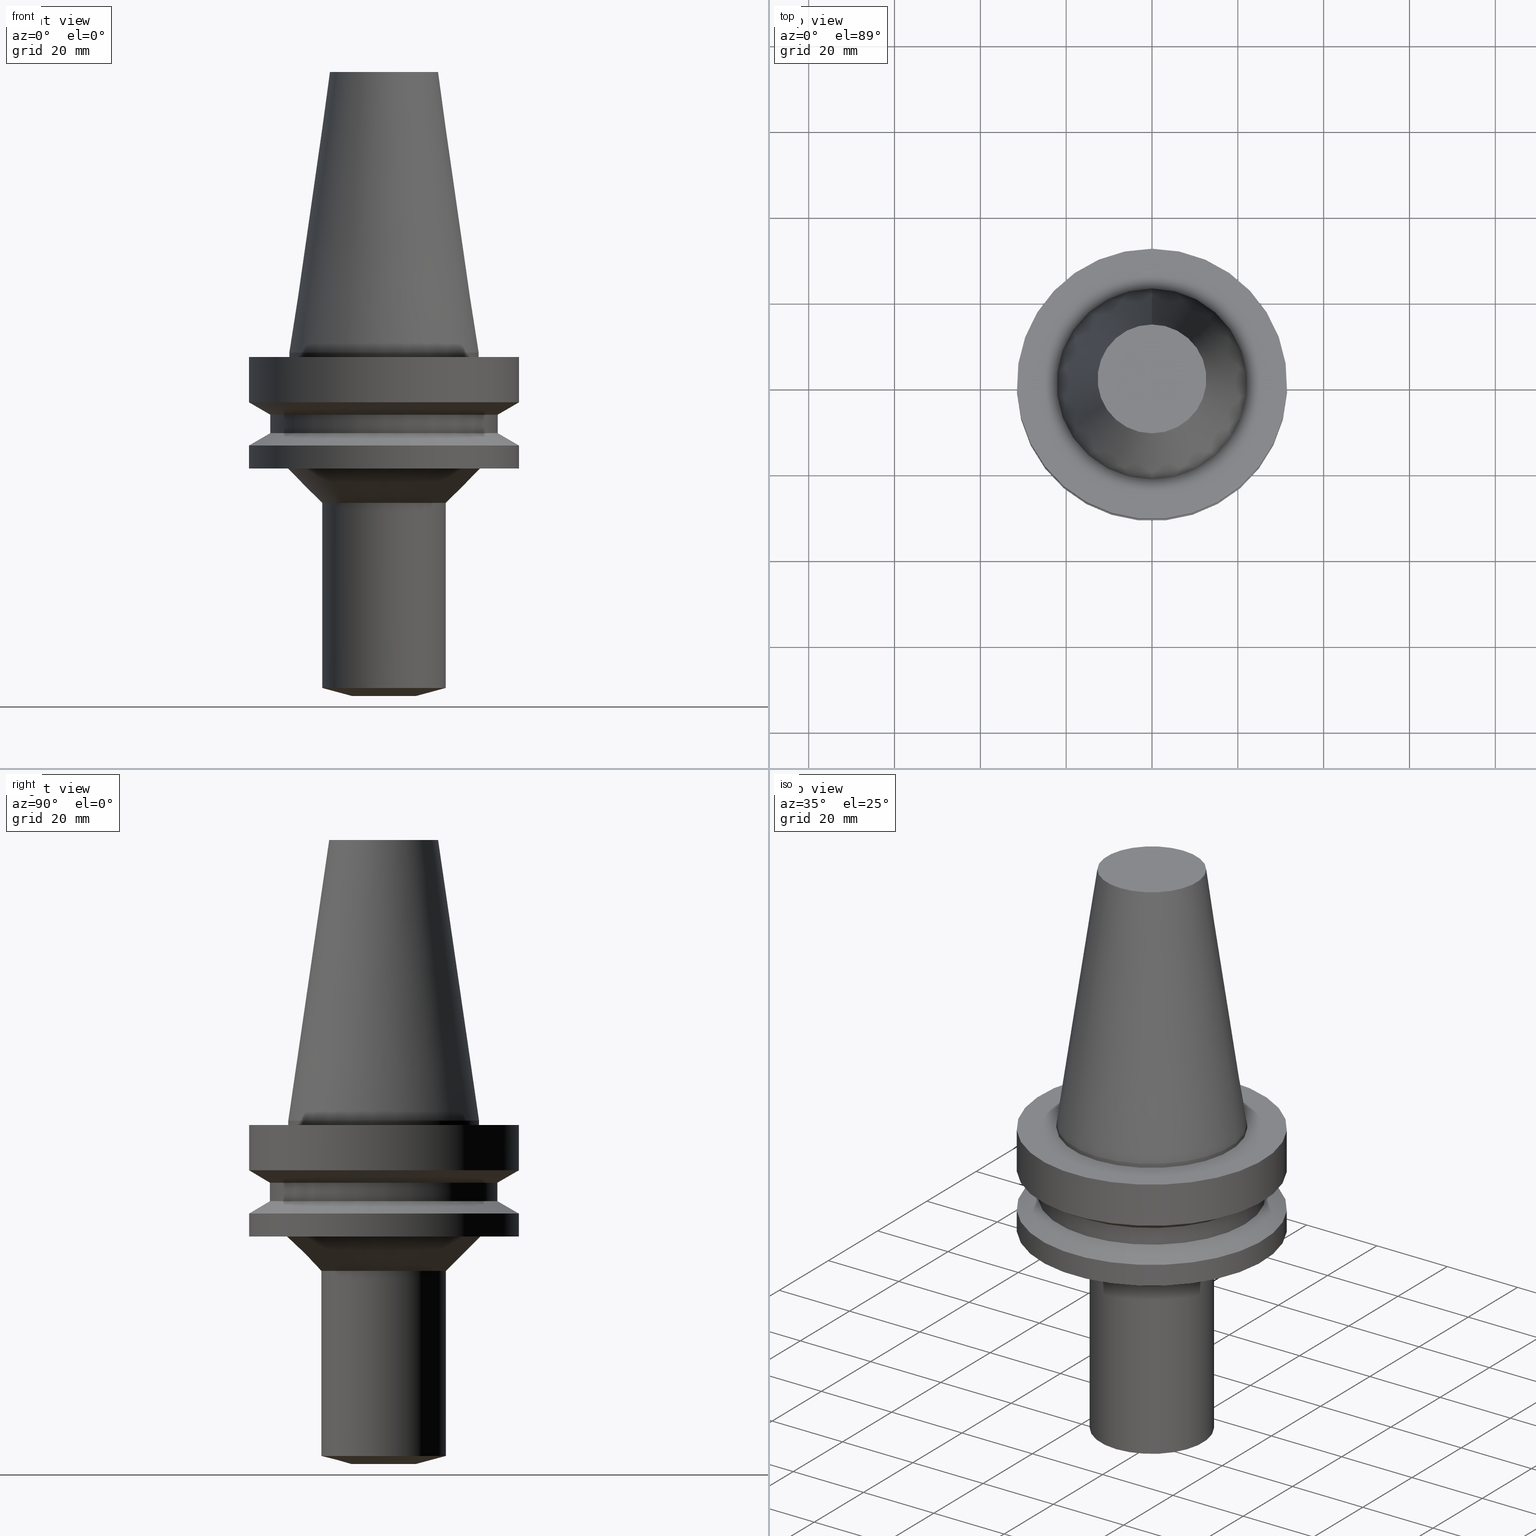
[diagram: canonical four-view strip — front | top / right | iso, engineering-drawing reading convention]
A machine part, canonical four-view strip (front | top / right | iso — engineering-drawing reading convention). The complete STEP part file that produces these views, byte-faithful:
ISO-10303-21;
HEADER;
FILE_DESCRIPTION((''),'1');
FILE_NAME('T:/21_DXF\X2\30C730FC30BF4F5C621057FA6E96\X0\/BBT40M-BSL10-80.stp','2017-05-09T05:48:59',(''),(''),'Spatial Interop R21 SP3','Kubotek KeyCreator 2011 V10.0.2 (22737)',' ');
FILE_SCHEMA(('automotive_design'));
ENDSEC;
DATA;
#1=MECHANICAL_DESIGN_GEOMETRIC_PRESENTATION_REPRESENTATION(' ',(#10,#11,#12,#13,#14,#15,#16,#17,#18,#19,#20,#21,#22,#23,#24,#25,#26,#27,#28,#29,#30,#31,#32,#33,#34,#35,#36,#37),#6);
#2=PRODUCT_DEFINITION_CONTEXT('',#38,'design');
#3=APPLICATION_PROTOCOL_DEFINITION('INTERNATIONAL STANDARD','automotive_design',1994,#38);
#4=PRODUCT_CATEGORY_RELATIONSHIP('NONE','NONE',#39,#40);
#5=SHAPE_DEFINITION_REPRESENTATION(#41,#42);
#6= (GEOMETRIC_REPRESENTATION_CONTEXT(3)GLOBAL_UNCERTAINTY_ASSIGNED_CONTEXT((#45))GLOBAL_UNIT_ASSIGNED_CONTEXT((#47,#48,#49))REPRESENTATION_CONTEXT('NONE','WORKSPACE'));
#10=STYLED_ITEM('',(#51,#52),#53);
#11=STYLED_ITEM('',(#54),#55);
#12=STYLED_ITEM('',(#56,#57),#58);
#13=STYLED_ITEM('',(#59,#60),#61);
#14=STYLED_ITEM('',(#62,#63),#64);
#15=STYLED_ITEM('',(#65,#66),#67);
#16=STYLED_ITEM('',(#68),#69);
#17=STYLED_ITEM('',(#70),#71);
#18=STYLED_ITEM('',(#72,#73),#74);
#19=STYLED_ITEM('',(#75,#76),#77);
#20=STYLED_ITEM('',(#78),#79);
#21=STYLED_ITEM('',(#80),#81);
#22=STYLED_ITEM('',(#82,#83),#84);
#23=STYLED_ITEM('',(#85,#86),#87);
#24=STYLED_ITEM('',(#88),#89);
#25=STYLED_ITEM('',(#90,#91),#92);
#26=STYLED_ITEM('',(#93),#94);
#27=STYLED_ITEM('',(#95),#96);
#28=STYLED_ITEM('',(#97,#98),#99);
#29=STYLED_ITEM('',(#100),#101);
#30=STYLED_ITEM('',(#102),#103);
#31=STYLED_ITEM('',(#104,#105),#106);
#32=STYLED_ITEM('',(#107),#108);
#33=STYLED_ITEM('',(#109,#110),#111);
#34=STYLED_ITEM('',(#112,#113),#114);
#35=STYLED_ITEM('',(#115),#116);
#36=STYLED_ITEM('',(#117,#118),#119);
#37=STYLED_ITEM('',(#120),#121);
#38=APPLICATION_CONTEXT(' ');
#39=PRODUCT_CATEGORY('part','NONE');
#40=PRODUCT_RELATED_PRODUCT_CATEGORY('detail',' ',(#122));
#41=PRODUCT_DEFINITION_SHAPE('NONE','NONE',#123);
#42=ADVANCED_BREP_SHAPE_REPRESENTATION('Unnamed[1]',(#92,#124),#6);
#45=UNCERTAINTY_MEASURE_WITH_UNIT(LENGTH_MEASURE(1.0E-006),#47,'','');
#47= (CONVERSION_BASED_UNIT('MILLIMETRE',#127)LENGTH_UNIT()NAMED_UNIT(#130));
#48= (NAMED_UNIT(#132)PLANE_ANGLE_UNIT()SI_UNIT($,.RADIAN.));
#49= (NAMED_UNIT(#132)SOLID_ANGLE_UNIT()SI_UNIT($,.STERADIAN.));
#51=PRESENTATION_STYLE_ASSIGNMENT((#138));
#52=PRESENTATION_STYLE_ASSIGNMENT((#139));
#53=ADVANCED_FACE('Unnamed[1]',(#140,#141),#142,.T.);
#54=PRESENTATION_STYLE_ASSIGNMENT((#143));
#55=EDGE_CURVE('Unnamed[1]',#144,#144,#145,.T.);
#56=PRESENTATION_STYLE_ASSIGNMENT((#146));
#57=PRESENTATION_STYLE_ASSIGNMENT((#147));
#58=ADVANCED_FACE('Unnamed[1]',(#148),#149,.T.);
#59=PRESENTATION_STYLE_ASSIGNMENT((#150));
#60=PRESENTATION_STYLE_ASSIGNMENT((#151));
#61=ADVANCED_FACE('Unnamed[1]',(#152,#153),#154,.T.);
#62=PRESENTATION_STYLE_ASSIGNMENT((#155));
#63=PRESENTATION_STYLE_ASSIGNMENT((#156));
#64=ADVANCED_FACE('Unnamed[1]',(#157,#158),#159,.T.);
#65=PRESENTATION_STYLE_ASSIGNMENT((#160));
#66=PRESENTATION_STYLE_ASSIGNMENT((#161));
#67=ADVANCED_FACE('Unnamed[1]',(#162,#163),#164,.T.);
#68=PRESENTATION_STYLE_ASSIGNMENT((#165));
#69=EDGE_CURVE('Unnamed[1]',#166,#166,#167,.T.);
#70=PRESENTATION_STYLE_ASSIGNMENT((#168));
#71=EDGE_CURVE('Unnamed[1]',#169,#169,#170,.T.);
#72=PRESENTATION_STYLE_ASSIGNMENT((#171));
#73=PRESENTATION_STYLE_ASSIGNMENT((#172));
#74=ADVANCED_FACE('Unnamed[1]',(#173,#174),#175,.T.);
#75=PRESENTATION_STYLE_ASSIGNMENT((#176));
#76=PRESENTATION_STYLE_ASSIGNMENT((#177));
#77=ADVANCED_FACE('Unnamed[1]',(#178,#179),#180,.T.);
#78=PRESENTATION_STYLE_ASSIGNMENT((#181));
#79=EDGE_CURVE('Unnamed[1]',#182,#182,#183,.T.);
#80=PRESENTATION_STYLE_ASSIGNMENT((#184));
#81=EDGE_CURVE('Unnamed[1]',#185,#185,#186,.T.);
#82=PRESENTATION_STYLE_ASSIGNMENT((#187));
#83=PRESENTATION_STYLE_ASSIGNMENT((#188));
#84=ADVANCED_FACE('Unnamed[1]',(#189,#190),#191,.T.);
#85=PRESENTATION_STYLE_ASSIGNMENT((#192));
#86=PRESENTATION_STYLE_ASSIGNMENT((#193));
#87=ADVANCED_FACE('Unnamed[1]',(#194,#195),#196,.T.);
#88=PRESENTATION_STYLE_ASSIGNMENT((#197));
#89=EDGE_CURVE('Unnamed[1]',#198,#198,#199,.T.);
#90=PRESENTATION_STYLE_ASSIGNMENT((#200));
#91=PRESENTATION_STYLE_ASSIGNMENT((#201));
#92=MANIFOLD_SOLID_BREP('Unnamed[1]',#202);
#93=PRESENTATION_STYLE_ASSIGNMENT((#203));
#94=EDGE_CURVE('Unnamed[1]',#204,#204,#205,.T.);
#95=PRESENTATION_STYLE_ASSIGNMENT((#206));
#96=EDGE_CURVE('Unnamed[1]',#207,#207,#208,.T.);
#97=PRESENTATION_STYLE_ASSIGNMENT((#209));
#98=PRESENTATION_STYLE_ASSIGNMENT((#210));
#99=ADVANCED_FACE('Unnamed[1]',(#211,#212),#213,.T.);
#100=PRESENTATION_STYLE_ASSIGNMENT((#214));
#101=EDGE_CURVE('Unnamed[1]',#215,#215,#216,.T.);
#102=PRESENTATION_STYLE_ASSIGNMENT((#217));
#103=EDGE_CURVE('Unnamed[1]',#218,#218,#219,.T.);
#104=PRESENTATION_STYLE_ASSIGNMENT((#220));
#105=PRESENTATION_STYLE_ASSIGNMENT((#221));
#106=ADVANCED_FACE('Unnamed[1]',(#222,#223),#224,.T.);
#107=PRESENTATION_STYLE_ASSIGNMENT((#225));
#108=EDGE_CURVE('Unnamed[1]',#226,#226,#227,.T.);
#109=PRESENTATION_STYLE_ASSIGNMENT((#228));
#110=PRESENTATION_STYLE_ASSIGNMENT((#229));
#111=ADVANCED_FACE('Unnamed[1]',(#230,#231),#232,.T.);
#112=PRESENTATION_STYLE_ASSIGNMENT((#233));
#113=PRESENTATION_STYLE_ASSIGNMENT((#234));
#114=ADVANCED_FACE('Unnamed[1]',(#235,#236),#237,.T.);
#115=PRESENTATION_STYLE_ASSIGNMENT((#238));
#116=EDGE_CURVE('Unnamed[1]',#239,#239,#240,.T.);
#117=PRESENTATION_STYLE_ASSIGNMENT((#241));
#118=PRESENTATION_STYLE_ASSIGNMENT((#242));
#119=ADVANCED_FACE('Unnamed[1]',(#243),#244,.T.);
#120=PRESENTATION_STYLE_ASSIGNMENT((#245));
#121=EDGE_CURVE('Unnamed[1]',#246,#246,#247,.T.);
#122=PRODUCT('Unnamed[1]','Unnamed[1]','PART-Unnamed[1]-DESC',(#248));
#123=PRODUCT_DEFINITION('NONE','NONE',#249,#2);
#124=AXIS2_PLACEMENT_3D('',#250,#251,#252);
#127=LENGTH_MEASURE_WITH_UNIT(LENGTH_MEASURE(1.0),#253);
#130=DIMENSIONAL_EXPONENTS(1.0,0.0,0.0,0.0,0.0,0.0,0.0);
#132=DIMENSIONAL_EXPONENTS(0.0,0.0,0.0,0.0,0.0,0.0,0.0);
#138=SURFACE_STYLE_USAGE(.BOTH.,#254);
#139=CURVE_STYLE('',#255,POSITIVE_LENGTH_MEASURE(1000.0),#256);
#140=FACE_BOUND('',#257,.T.);
#141=FACE_BOUND('',#258,.T.);
#142=CYLINDRICAL_SURFACE('',#259,31.5000000000005);
#143=CURVE_STYLE('',#260,POSITIVE_LENGTH_MEASURE(1000.0),#261);
#144=VERTEX_POINT('',#262);
#145=CIRCLE('',#263,22.225);
#146=SURFACE_STYLE_USAGE(.BOTH.,#264);
#147=CURVE_STYLE('',#265,POSITIVE_LENGTH_MEASURE(1000.0),#266);
#148=FACE_OUTER_BOUND('',#267,.T.);
#149=PLANE('',#268);
#150=SURFACE_STYLE_USAGE(.BOTH.,#269);
#151=CURVE_STYLE('',#270,POSITIVE_LENGTH_MEASURE(1000.0),#271);
#152=FACE_BOUND('',#272,.T.);
#153=FACE_BOUND('',#273,.T.);
#154=CYLINDRICAL_SURFACE('',#274,26.4999999999997);
#155=SURFACE_STYLE_USAGE(.BOTH.,#275);
#156=CURVE_STYLE('',#276,POSITIVE_LENGTH_MEASURE(1000.0),#277);
#157=FACE_BOUND('',#278,.T.);
#158=FACE_BOUND('',#279,.T.);
#159=CONICAL_SURFACE('',#280,17.4562500000001,0.144812498238936);
#160=SURFACE_STYLE_USAGE(.BOTH.,#281);
#161=CURVE_STYLE('',#282,POSITIVE_LENGTH_MEASURE(1000.0),#283);
#162=FACE_BOUND('',#284,.T.);
#163=FACE_BOUND('',#285,.T.);
#164=CYLINDRICAL_SURFACE('',#286,14.5);
#165=CURVE_STYLE('',#287,POSITIVE_LENGTH_MEASURE(1000.0),#288);
#166=VERTEX_POINT('',#289);
#167=CIRCLE('',#290,26.4999999999994);
#168=CURVE_STYLE('',#291,POSITIVE_LENGTH_MEASURE(1000.0),#292);
#169=VERTEX_POINT('',#293);
#170=CIRCLE('',#294,26.5);
#171=SURFACE_STYLE_USAGE(.BOTH.,#295);
#172=CURVE_STYLE('',#296,POSITIVE_LENGTH_MEASURE(1000.0),#297);
#173=FACE_BOUND('',#298,.T.);
#174=FACE_BOUND('',#299,.T.);
#175=CONICAL_SURFACE('',#300,11.0,1.3089969390537);
#176=SURFACE_STYLE_USAGE(.BOTH.,#301);
#177=CURVE_STYLE('',#302,POSITIVE_LENGTH_MEASURE(1000.0),#303);
#178=FACE_BOUND('',#304,.T.);
#179=FACE_BOUND('',#305,.T.);
#180=CYLINDRICAL_SURFACE('',#306,31.5);
#181=CURVE_STYLE('',#307,POSITIVE_LENGTH_MEASURE(1000.0),#308);
#182=VERTEX_POINT('',#309);
#183=CIRCLE('',#310,31.5000000000007);
#184=CURVE_STYLE('',#311,POSITIVE_LENGTH_MEASURE(1000.0),#312);
#185=VERTEX_POINT('',#313);
#186=CIRCLE('',#314,7.50000000000003);
#187=SURFACE_STYLE_USAGE(.BOTH.,#315);
#188=CURVE_STYLE('',#316,POSITIVE_LENGTH_MEASURE(1000.0),#317);
#189=FACE_BOUND('',#318,.T.);
#190=FACE_BOUND('',#319,.T.);
#191=CONICAL_SURFACE('',#320,18.5000000000001,0.785398163397448);
#192=SURFACE_STYLE_USAGE(.BOTH.,#321);
#193=CURVE_STYLE('',#322,POSITIVE_LENGTH_MEASURE(1000.0),#323);
#194=FACE_OUTER_BOUND('',#324,.T.);
#195=FACE_BOUND('',#325,.T.);
#196=PLANE('',#326);
#197=CURVE_STYLE('',#327,POSITIVE_LENGTH_MEASURE(1000.0),#328);
#198=VERTEX_POINT('',#329);
#199=CIRCLE('',#330,12.6875000000001);
#200=SURFACE_STYLE_USAGE(.BOTH.,#331);
#201=CURVE_STYLE('',#332,POSITIVE_LENGTH_MEASURE(1000.0),#333);
#202=CLOSED_SHELL('',(#119,#64,#106,#87,#77,#114,#61,#111,#53,#99,#84,#67,#74,#58));
#203=CURVE_STYLE('',#334,POSITIVE_LENGTH_MEASURE(1000.0),#335);
#204=VERTEX_POINT('',#336);
#205=CIRCLE('',#337,31.5000000000004);
#206=CURVE_STYLE('',#338,POSITIVE_LENGTH_MEASURE(1000.0),#339);
#207=VERTEX_POINT('',#340);
#208=CIRCLE('',#341,22.225);
#209=SURFACE_STYLE_USAGE(.BOTH.,#342);
#210=CURVE_STYLE('',#343,POSITIVE_LENGTH_MEASURE(1000.0),#344);
#211=FACE_BOUND('',#345,.T.);
#212=FACE_OUTER_BOUND('',#346,.T.);
#213=PLANE('',#347);
#214=CURVE_STYLE('',#348,POSITIVE_LENGTH_MEASURE(1000.0),#349);
#215=VERTEX_POINT('',#350);
#216=CIRCLE('',#351,22.5000000000002);
#217=CURVE_STYLE('',#352,POSITIVE_LENGTH_MEASURE(1000.0),#353);
#218=VERTEX_POINT('',#354);
#219=CIRCLE('',#355,14.5);
#220=SURFACE_STYLE_USAGE(.BOTH.,#356);
#221=CURVE_STYLE('',#357,POSITIVE_LENGTH_MEASURE(1000.0),#358);
#222=FACE_BOUND('',#359,.T.);
#223=FACE_BOUND('',#360,.T.);
#224=CYLINDRICAL_SURFACE('',#361,22.225);
#225=CURVE_STYLE('',#362,POSITIVE_LENGTH_MEASURE(1000.0),#363);
#226=VERTEX_POINT('',#364);
#227=CIRCLE('',#365,14.5);
#228=SURFACE_STYLE_USAGE(.BOTH.,#366);
#229=CURVE_STYLE('',#367,POSITIVE_LENGTH_MEASURE(1000.0),#368);
#230=FACE_BOUND('',#369,.T.);
#231=FACE_BOUND('',#370,.T.);
#232=CONICAL_SURFACE('',#371,29.0000000000004,1.04719755119651);
#233=SURFACE_STYLE_USAGE(.BOTH.,#372);
#234=CURVE_STYLE('',#373,POSITIVE_LENGTH_MEASURE(1000.0),#374);
#235=FACE_BOUND('',#375,.T.);
#236=FACE_BOUND('',#376,.T.);
#237=CONICAL_SURFACE('',#377,28.9999999999999,1.04719755119657);
#238=CURVE_STYLE('',#378,POSITIVE_LENGTH_MEASURE(1000.0),#379);
#239=VERTEX_POINT('',#380);
#240=CIRCLE('',#381,31.4999999999997);
#241=SURFACE_STYLE_USAGE(.BOTH.,#382);
#242=CURVE_STYLE('',#383,POSITIVE_LENGTH_MEASURE(1000.0),#384);
#243=FACE_OUTER_BOUND('',#385,.T.);
#244=PLANE('',#386);
#245=CURVE_STYLE('',#387,POSITIVE_LENGTH_MEASURE(1000.0),#388);
#246=VERTEX_POINT('',#389);
#247=CIRCLE('',#390,31.5000000000004);
#248=PRODUCT_CONTEXT('',#38,'mechanical');
#249=PRODUCT_DEFINITION_FORMATION_WITH_SPECIFIED_SOURCE(' ','NONE',#122,.NOT_KNOWN.);
#250=CARTESIAN_POINT('',(0.0,0.0,0.0));
#251=DIRECTION('',(0.0,0.0,1.0));
#252=DIRECTION('',(1.0,0.0,0.0));
#253= (NAMED_UNIT(#130)LENGTH_UNIT()SI_UNIT(.MILLI.,.METRE.));
#254=SURFACE_SIDE_STYLE('',(#392));
#255=DRAUGHTING_PRE_DEFINED_CURVE_FONT('continuous');
#256=COLOUR_RGB('',0.0,1.0,0.0);
#257=EDGE_LOOP('',(#393));
#258=EDGE_LOOP('',(#394));
#259=AXIS2_PLACEMENT_3D('',#395,#396,#397);
#260=DRAUGHTING_PRE_DEFINED_CURVE_FONT('continuous');
#261=COLOUR_RGB('',0.0,1.0,0.0);
#262=CARTESIAN_POINT('',(6.12323399573604E-017,22.2250000000001,-0.999999999999884));
#263=AXIS2_PLACEMENT_3D('',#398,#399,#400);
#264=SURFACE_SIDE_STYLE('',(#401));
#265=DRAUGHTING_PRE_DEFINED_CURVE_FONT('continuous');
#266=COLOUR_RGB('',0.0,1.0,0.0);
#267=EDGE_LOOP('',(#402));
#268=AXIS2_PLACEMENT_3D('',#403,#404,#405);
#269=SURFACE_SIDE_STYLE('',(#406));
#270=DRAUGHTING_PRE_DEFINED_CURVE_FONT('continuous');
#271=COLOUR_RGB('',0.0,1.0,0.0);
#272=EDGE_LOOP('',(#407));
#273=EDGE_LOOP('',(#408));
#274=AXIS2_PLACEMENT_3D('',#409,#410,#411);
#275=SURFACE_SIDE_STYLE('',(#412));
#276=DRAUGHTING_PRE_DEFINED_CURVE_FONT('continuous');
#277=COLOUR_RGB('',0.0,1.0,0.0);
#278=EDGE_LOOP('',(#413));
#279=EDGE_LOOP('',(#414));
#280=AXIS2_PLACEMENT_3D('',#415,#416,#417);
#281=SURFACE_SIDE_STYLE('',(#418));
#282=DRAUGHTING_PRE_DEFINED_CURVE_FONT('continuous');
#283=COLOUR_RGB('',0.0,1.0,0.0);
#284=EDGE_LOOP('',(#419));
#285=EDGE_LOOP('',(#420));
#286=AXIS2_PLACEMENT_3D('',#421,#422,#423);
#287=DRAUGHTING_PRE_DEFINED_CURVE_FONT('continuous');
#288=COLOUR_RGB('',0.0,1.0,0.0);
#289=CARTESIAN_POINT('',(8.8494551369045E-016,26.4999999999995,-14.4522569986152));
#290=AXIS2_PLACEMENT_3D('',#424,#425,#426);
#291=DRAUGHTING_PRE_DEFINED_CURVE_FONT('continuous');
#292=COLOUR_RGB('',0.0,1.0,0.0);
#293=CARTESIAN_POINT('',(1.1479681728942E-015,26.5,-18.7477430013855));
#294=AXIS2_PLACEMENT_3D('',#427,#428,#429);
#295=SURFACE_SIDE_STYLE('',(#430));
#296=DRAUGHTING_PRE_DEFINED_CURVE_FONT('continuous');
#297=COLOUR_RGB('',0.0,1.0,0.0);
#298=EDGE_LOOP('',(#431));
#299=EDGE_LOOP('',(#432));
#300=AXIS2_PLACEMENT_3D('',#433,#434,#435);
#301=SURFACE_SIDE_STYLE('',(#436));
#302=DRAUGHTING_PRE_DEFINED_CURVE_FONT('continuous');
#303=COLOUR_RGB('',0.0,1.0,0.0);
#304=EDGE_LOOP('',(#437));
#305=EDGE_LOOP('',(#438));
#306=AXIS2_PLACEMENT_3D('',#439,#440,#441);
#307=DRAUGHTING_PRE_DEFINED_CURVE_FONT('continuous');
#308=COLOUR_RGB('',0.0,1.0,0.0);
#309=CARTESIAN_POINT('',(1.32473071268174E-015,31.5000000000007,-21.6344943473346));
#310=AXIS2_PLACEMENT_3D('',#442,#443,#444);
#311=DRAUGHTING_PRE_DEFINED_CURVE_FONT('continuous');
#312=COLOUR_RGB('',0.0,1.0,0.0);
#313=CARTESIAN_POINT('',(4.89858719658941E-015,7.50000000000001,-80.0));
#314=AXIS2_PLACEMENT_3D('',#445,#446,#447);
#315=SURFACE_SIDE_STYLE('',(#448));
#316=DRAUGHTING_PRE_DEFINED_CURVE_FONT('continuous');
#317=COLOUR_RGB('',0.0,1.0,0.0);
#318=EDGE_LOOP('',(#449));
#319=EDGE_LOOP('',(#450));
#320=AXIS2_PLACEMENT_3D('',#451,#452,#453);
#321=SURFACE_SIDE_STYLE('',(#454));
#322=DRAUGHTING_PRE_DEFINED_CURVE_FONT('continuous');
#323=COLOUR_RGB('',0.0,1.0,0.0);
#324=EDGE_LOOP('',(#455));
#325=EDGE_LOOP('',(#456));
#326=AXIS2_PLACEMENT_3D('',#457,#458,#459);
#327=DRAUGHTING_PRE_DEFINED_CURVE_FONT('continuous');
#328=COLOUR_RGB('',0.0,1.0,0.0);
#329=CARTESIAN_POINT('',(-4.00459503321185E-015,12.6875000000002,65.4000000000001));
#330=AXIS2_PLACEMENT_3D('',#460,#461,#462);
#331=SURFACE_SIDE_STYLE('',(#463));
#332=DRAUGHTING_PRE_DEFINED_CURVE_FONT('continuous');
#333=COLOUR_RGB('',0.0,1.0,0.0);
#334=DRAUGHTING_PRE_DEFINED_CURVE_FONT('continuous');
#335=COLOUR_RGB('',0.0,1.0,0.0);
#336=CARTESIAN_POINT('',(1.65327317884891E-015,31.5000000000004,-26.9999999999997));
#337=AXIS2_PLACEMENT_3D('',#464,#465,#466);
#338=DRAUGHTING_PRE_DEFINED_CURVE_FONT('continuous');
#339=COLOUR_RGB('',0.0,1.0,0.0);
#340=CARTESIAN_POINT('',(1.71319921032766E-029,22.2250000000001,-2.8153873565375E-013));
#341=AXIS2_PLACEMENT_3D('',#467,#468,#469);
#342=SURFACE_SIDE_STYLE('',(#470));
#343=DRAUGHTING_PRE_DEFINED_CURVE_FONT('continuous');
#344=COLOUR_RGB('',0.0,1.0,0.0);
#345=EDGE_LOOP('',(#471));
#346=EDGE_LOOP('',(#472));
#347=AXIS2_PLACEMENT_3D('',#473,#474,#475);
#348=DRAUGHTING_PRE_DEFINED_CURVE_FONT('continuous');
#349=COLOUR_RGB('',0.0,1.0,0.0);
#350=CARTESIAN_POINT('',(1.65327317884891E-015,22.5000000000003,-26.9999999999997));
#351=AXIS2_PLACEMENT_3D('',#476,#477,#478);
#352=DRAUGHTING_PRE_DEFINED_CURVE_FONT('continuous');
#353=COLOUR_RGB('',0.0,1.0,0.0);
#354=CARTESIAN_POINT('',(4.78373710432032E-015,14.5,-78.1243556534169));
#355=AXIS2_PLACEMENT_3D('',#479,#480,#481);
#356=SURFACE_SIDE_STYLE('',(#482));
#357=DRAUGHTING_PRE_DEFINED_CURVE_FONT('continuous');
#358=COLOUR_RGB('',0.0,1.0,0.0);
#359=EDGE_LOOP('',(#483));
#360=EDGE_LOOP('',(#484));
#361=AXIS2_PLACEMENT_3D('',#485,#486,#487);
#362=DRAUGHTING_PRE_DEFINED_CURVE_FONT('continuous');
#363=COLOUR_RGB('',0.0,1.0,0.0);
#364=CARTESIAN_POINT('',(2.14313189850787E-015,14.5,-35.0));
#365=AXIS2_PLACEMENT_3D('',#488,#489,#490);
#366=SURFACE_SIDE_STYLE('',(#491));
#367=DRAUGHTING_PRE_DEFINED_CURVE_FONT('continuous');
#368=COLOUR_RGB('',0.0,1.0,0.0);
#369=EDGE_LOOP('',(#492));
#370=EDGE_LOOP('',(#493));
#371=AXIS2_PLACEMENT_3D('',#494,#495,#496);
#372=SURFACE_SIDE_STYLE('',(#497));
#373=DRAUGHTING_PRE_DEFINED_CURVE_FONT('continuous');
#374=COLOUR_RGB('',0.0,1.0,0.0);
#375=EDGE_LOOP('',(#498));
#376=EDGE_LOOP('',(#499));
#377=AXIS2_PLACEMENT_3D('',#500,#501,#502);
#378=DRAUGHTING_PRE_DEFINED_CURVE_FONT('continuous');
#379=COLOUR_RGB('',0.0,1.0,0.0);
#380=CARTESIAN_POINT('',(6.12323399573568E-017,31.4999999999997,-0.999999999999825));
#381=AXIS2_PLACEMENT_3D('',#503,#504,#505);
#382=SURFACE_SIDE_STYLE('',(#506));
#383=DRAUGHTING_PRE_DEFINED_CURVE_FONT('continuous');
#384=COLOUR_RGB('',0.0,1.0,0.0);
#385=EDGE_LOOP('',(#507));
#386=AXIS2_PLACEMENT_3D('',#508,#509,#510);
#387=DRAUGHTING_PRE_DEFINED_CURVE_FONT('continuous');
#388=COLOUR_RGB('',0.0,1.0,0.0);
#389=CARTESIAN_POINT('',(7.08182973902923E-016,31.5000000000004,-11.5655056526664));
#390=AXIS2_PLACEMENT_3D('',#511,#512,#513);
#392=SURFACE_STYLE_FILL_AREA(#514);
#393=ORIENTED_EDGE('',*,*,#94,.F.);
#394=ORIENTED_EDGE('',*,*,#79,.T.);
#395=CARTESIAN_POINT('',(1.48900194576533E-015,1.85605636887603E-014,-24.3172471736672));
#396=DIRECTION('',(6.12323399573677E-017,-6.46048942079378E-016,-1.0));
#397=DIRECTION('',(3.47319357197332E-032,1.0,-6.46048942079378E-016));
#398=CARTESIAN_POINT('',(6.12323399573598E-017,3.36246465575114E-014,-0.999999999999872));
#399=DIRECTION('',(6.12323399573676E-017,-6.46048942079378E-016,-1.0));
#400=DIRECTION('',(3.47319357197332E-032,1.0,-6.46048942079378E-016));
#401=SURFACE_STYLE_FILL_AREA(#515);
#402=ORIENTED_EDGE('',*,*,#81,.T.);
#403=CARTESIAN_POINT('',(4.89858719658941E-015,3.75,-80.0));
#404=DIRECTION('',(6.12323399573677E-017,1.22464679914735E-016,-1.0));
#405=DIRECTION('',(-1.23259516440783E-032,1.0,1.22464679914735E-016));
#406=SURFACE_STYLE_FILL_AREA(#516);
#407=ORIENTED_EDGE('',*,*,#71,.F.);
#408=ORIENTED_EDGE('',*,*,#69,.T.);
#409=CARTESIAN_POINT('',(1.01645684329232E-015,2.35462830610728E-014,-16.6000000000003));
#410=DIRECTION('',(6.12323399573677E-017,-6.46048942079378E-016,-1.0));
#411=DIRECTION('',(3.47319357197332E-032,1.0,-6.46048942079378E-016));
#412=SURFACE_STYLE_FILL_AREA(#517);
#413=ORIENTED_EDGE('',*,*,#96,.F.);
#414=ORIENTED_EDGE('',*,*,#89,.T.);
#415=CARTESIAN_POINT('',(-2.00229751660592E-015,5.53964959055863E-014,32.6999999999999));
#416=DIRECTION('',(6.12323399573677E-017,-6.46048942079378E-016,-1.0));
#417=DIRECTION('',(3.47319357197332E-032,1.0,-6.46048942079378E-016));
#418=SURFACE_STYLE_FILL_AREA(#518);
#419=ORIENTED_EDGE('',*,*,#103,.F.);
#420=ORIENTED_EDGE('',*,*,#108,.T.);
#421=CARTESIAN_POINT('',(3.4634345014141E-015,-2.27123964705995E-015,-56.5621778267084));
#422=DIRECTION('',(6.12323399573677E-017,-6.46048942079378E-016,-1.0));
#423=DIRECTION('',(3.47319357197332E-032,1.0,-6.46048942079378E-016));
#424=CARTESIAN_POINT('',(8.8494551369045E-016,2.49338301549761E-014,-14.4522569986152));
#425=DIRECTION('',(6.12323399573676E-017,-6.46048942079378E-016,-1.0));
#426=DIRECTION('',(3.47319357197332E-032,1.0,-6.46048942079378E-016));
#427=CARTESIAN_POINT('',(1.1479681728942E-015,2.21587359671696E-014,-18.7477430013855));
#428=DIRECTION('',(6.12323399573677E-017,-6.46048942079378E-016,-1.0));
#429=DIRECTION('',(3.47319357197332E-032,1.0,-6.46048942079378E-016));
#430=SURFACE_STYLE_FILL_AREA(#519);
#431=ORIENTED_EDGE('',*,*,#81,.F.);
#432=ORIENTED_EDGE('',*,*,#103,.T.);
#433=CARTESIAN_POINT('',(4.84116215045487E-015,-1.6807340843846E-014,-79.0621778267084));
#434=DIRECTION('',(-6.12323399573677E-017,6.46048942079378E-016,1.0));
#435=DIRECTION('',(3.47319357197332E-032,1.0,-6.46048942079378E-016));
#436=SURFACE_STYLE_FILL_AREA(#520);
#437=ORIENTED_EDGE('',*,*,#121,.F.);
#438=ORIENTED_EDGE('',*,*,#116,.T.);
#439=CARTESIAN_POINT('',(3.84707656930139E-016,3.0211729682792E-014,-6.28275282633307));
#440=DIRECTION('',(6.12323399573677E-017,-6.46048942079378E-016,-1.0));
#441=DIRECTION('',(3.47319357197332E-032,1.0,-6.46048942079378E-016));
#442=CARTESIAN_POINT('',(1.32473071268174E-015,2.02937533140729E-014,-21.6344943473346));
#443=DIRECTION('',(6.12323399573677E-017,-6.46048942079378E-016,-1.0));
#444=DIRECTION('',(3.47319357197332E-032,1.0,-6.46048942079378E-016));
#445=CARTESIAN_POINT('',(4.89858719658941E-015,-1.74132198667595E-014,-80.0));
#446=DIRECTION('',(6.12323399573677E-017,-6.46048942079378E-016,-1.0));
#447=DIRECTION('',(3.47319357197332E-032,1.0,-6.46048942079378E-016));
#448=SURFACE_STYLE_FILL_AREA(#521);
#449=ORIENTED_EDGE('',*,*,#108,.F.);
#450=ORIENTED_EDGE('',*,*,#101,.T.);
#451=CARTESIAN_POINT('',(1.89820253867839E-015,1.42431782951301E-014,-30.9999999999999));
#452=DIRECTION('',(-6.12323399573677E-017,6.46048942079378E-016,1.0));
#453=DIRECTION('',(3.47319357197332E-032,1.0,-6.46048942079378E-016));
#454=SURFACE_STYLE_FILL_AREA(#522);
#455=ORIENTED_EDGE('',*,*,#116,.F.);
#456=ORIENTED_EDGE('',*,*,#55,.T.);
#457=CARTESIAN_POINT('',(6.12323399573586E-017,26.8624999999999,-0.999999999999855));
#458=DIRECTION('',(-6.12323399573677E-017,-6.28704535573121E-015,1.0));
#459=DIRECTION('',(3.89797651280292E-031,-1.0,-6.28704535573121E-015));
#460=CARTESIAN_POINT('',(-4.00459503321185E-015,7.65222963115821E-014,65.4000000000001));
#461=DIRECTION('',(6.12323399573677E-017,-6.46048942079378E-016,-1.0));
#462=DIRECTION('',(3.47319357197332E-032,1.0,-6.46048942079378E-016));
#463=SURFACE_STYLE_FILL_AREA(#523);
#464=CARTESIAN_POINT('',(1.65327317884891E-015,1.68273740634477E-014,-26.9999999999997));
#465=DIRECTION('',(6.12323399573677E-017,-6.46048942079378E-016,-1.0));
#466=DIRECTION('',(3.47319357197332E-032,1.0,-6.46048942079378E-016));
#467=CARTESIAN_POINT('',(1.65331138531142E-029,3.42706954995905E-014,-2.70006239588838E-013));
#468=DIRECTION('',(6.12323399573677E-017,-6.46048942079378E-016,-1.0));
#469=DIRECTION('',(3.47319357197332E-032,1.0,-6.46048942079378E-016));
#470=SURFACE_STYLE_FILL_AREA(#524);
#471=ORIENTED_EDGE('',*,*,#101,.F.);
#472=ORIENTED_EDGE('',*,*,#94,.T.);
#473=CARTESIAN_POINT('',(1.65327317884891E-015,27.0000000000003,-26.9999999999997));
#474=DIRECTION('',(6.12323399573677E-017,2.4909404657817E-015,-1.0));
#475=DIRECTION('',(-1.57353266145078E-031,1.0,2.4909404657817E-015));
#476=CARTESIAN_POINT('',(1.65327317884891E-015,1.68273740634477E-014,-26.9999999999997));
#477=DIRECTION('',(6.12323399573677E-017,-6.46048942079378E-016,-1.0));
#478=DIRECTION('',(3.47319357197332E-032,1.0,-6.46048942079378E-016));
#479=CARTESIAN_POINT('',(4.78373710432032E-015,-1.62014618209324E-014,-78.1243556534169));
#480=DIRECTION('',(6.12323399573677E-017,-6.46048942079378E-016,-1.0));
#481=DIRECTION('',(3.47319357197332E-032,1.0,-6.46048942079378E-016));
#482=SURFACE_STYLE_FILL_AREA(#525);
#483=ORIENTED_EDGE('',*,*,#55,.F.);
#484=ORIENTED_EDGE('',*,*,#96,.T.);
#485=CARTESIAN_POINT('',(3.06161699786882E-017,3.3947671028551E-014,-0.500000000000071));
#486=DIRECTION('',(6.12323399573677E-017,-6.46048942079378E-016,-1.0));
#487=DIRECTION('',(3.47319357197332E-032,1.0,-6.46048942079378E-016));
#488=CARTESIAN_POINT('',(2.14313189850787E-015,1.16589825268125E-014,-35.0));
#489=DIRECTION('',(6.12323399573677E-017,-6.46048942079378E-016,-1.0));
#490=DIRECTION('',(3.47319357197332E-032,1.0,-6.46048942079378E-016));
#491=SURFACE_STYLE_FILL_AREA(#526);
#492=ORIENTED_EDGE('',*,*,#79,.F.);
#493=ORIENTED_EDGE('',*,*,#71,.T.);
#494=CARTESIAN_POINT('',(1.23634944278797E-015,2.12262446406212E-014,-20.1911186743601));
#495=DIRECTION('',(6.12323399573677E-017,-6.46048942079378E-016,-1.0));
#496=DIRECTION('',(3.47319357197332E-032,1.0,-6.46048942079378E-016));
#497=SURFACE_STYLE_FILL_AREA(#527);
#498=ORIENTED_EDGE('',*,*,#69,.F.);
#499=ORIENTED_EDGE('',*,*,#121,.T.);
#500=CARTESIAN_POINT('',(7.96564243796686E-016,2.58663214815243E-014,-13.0088813256407));
#501=DIRECTION('',(-6.12323399573677E-017,6.46048942079378E-016,1.0));
#502=DIRECTION('',(3.47319357197332E-032,1.0,-6.46048942079378E-016));
#503=CARTESIAN_POINT('',(6.12323399573555E-017,3.36246465575115E-014,-0.999999999999801));
#504=DIRECTION('',(6.12323399573677E-017,-6.46048942079378E-016,-1.0));
#505=DIRECTION('',(3.47319357197332E-032,1.0,-6.46048942079378E-016));
#506=SURFACE_STYLE_FILL_AREA(#528);
#507=ORIENTED_EDGE('',*,*,#89,.F.);
#508=CARTESIAN_POINT('',(-4.00459503321185E-015,6.34375000000014,65.4000000000001));
#509=DIRECTION('',(-6.12323399573677E-017,-1.22464679914735E-016,1.0));
#510=DIRECTION('',(1.23259516440783E-032,-1.0,-1.22464679914735E-016));
#511=CARTESIAN_POINT('',(7.08182973902922E-016,2.67988128080726E-014,-11.5655056526663));
#512=DIRECTION('',(6.12323399573677E-017,-6.46048942079378E-016,-1.0));
#513=DIRECTION('',(3.47319357197332E-032,1.0,-6.46048942079378E-016));
#514=FILL_AREA_STYLE('',(#529));
#515=FILL_AREA_STYLE('',(#530));
#516=FILL_AREA_STYLE('',(#531));
#517=FILL_AREA_STYLE('',(#532));
#518=FILL_AREA_STYLE('',(#533));
#519=FILL_AREA_STYLE('',(#534));
#520=FILL_AREA_STYLE('',(#535));
#521=FILL_AREA_STYLE('',(#536));
#522=FILL_AREA_STYLE('',(#537));
#523=FILL_AREA_STYLE('',(#538));
#524=FILL_AREA_STYLE('',(#539));
#525=FILL_AREA_STYLE('',(#540));
#526=FILL_AREA_STYLE('',(#541));
#527=FILL_AREA_STYLE('',(#542));
#528=FILL_AREA_STYLE('',(#543));
#529=FILL_AREA_STYLE_COLOUR('',#544);
#530=FILL_AREA_STYLE_COLOUR('',#545);
#531=FILL_AREA_STYLE_COLOUR('',#546);
#532=FILL_AREA_STYLE_COLOUR('',#547);
#533=FILL_AREA_STYLE_COLOUR('',#548);
#534=FILL_AREA_STYLE_COLOUR('',#549);
#535=FILL_AREA_STYLE_COLOUR('',#550);
#536=FILL_AREA_STYLE_COLOUR('',#551);
#537=FILL_AREA_STYLE_COLOUR('',#552);
#538=FILL_AREA_STYLE_COLOUR('',#553);
#539=FILL_AREA_STYLE_COLOUR('',#554);
#540=FILL_AREA_STYLE_COLOUR('',#555);
#541=FILL_AREA_STYLE_COLOUR('',#556);
#542=FILL_AREA_STYLE_COLOUR('',#557);
#543=FILL_AREA_STYLE_COLOUR('',#558);
#544=COLOUR_RGB('',0.0,1.0,0.0);
#545=COLOUR_RGB('',0.0,1.0,0.0);
#546=COLOUR_RGB('',0.0,1.0,0.0);
#547=COLOUR_RGB('',0.0,1.0,0.0);
#548=COLOUR_RGB('',0.0,1.0,0.0);
#549=COLOUR_RGB('',0.0,1.0,0.0);
#550=COLOUR_RGB('',0.0,1.0,0.0);
#551=COLOUR_RGB('',0.0,1.0,0.0);
#552=COLOUR_RGB('',0.0,1.0,0.0);
#553=COLOUR_RGB('',0.0,1.0,0.0);
#554=COLOUR_RGB('',0.0,1.0,0.0);
#555=COLOUR_RGB('',0.0,1.0,0.0);
#556=COLOUR_RGB('',0.0,1.0,0.0);
#557=COLOUR_RGB('',0.0,1.0,0.0);
#558=COLOUR_RGB('',0.0,1.0,0.0);
ENDSEC;
END-ISO-10303-21;
